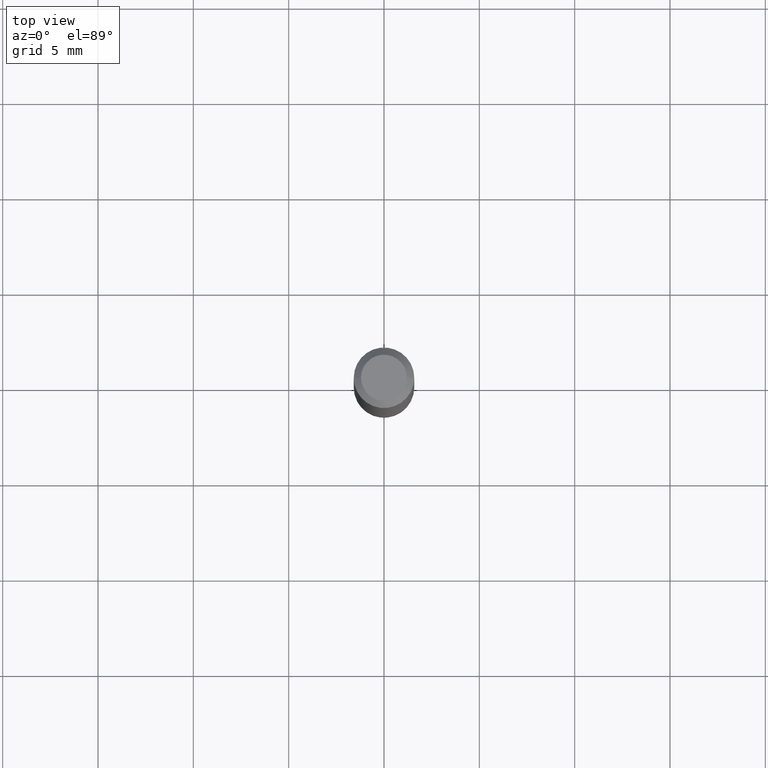
[diagram: clean part render]
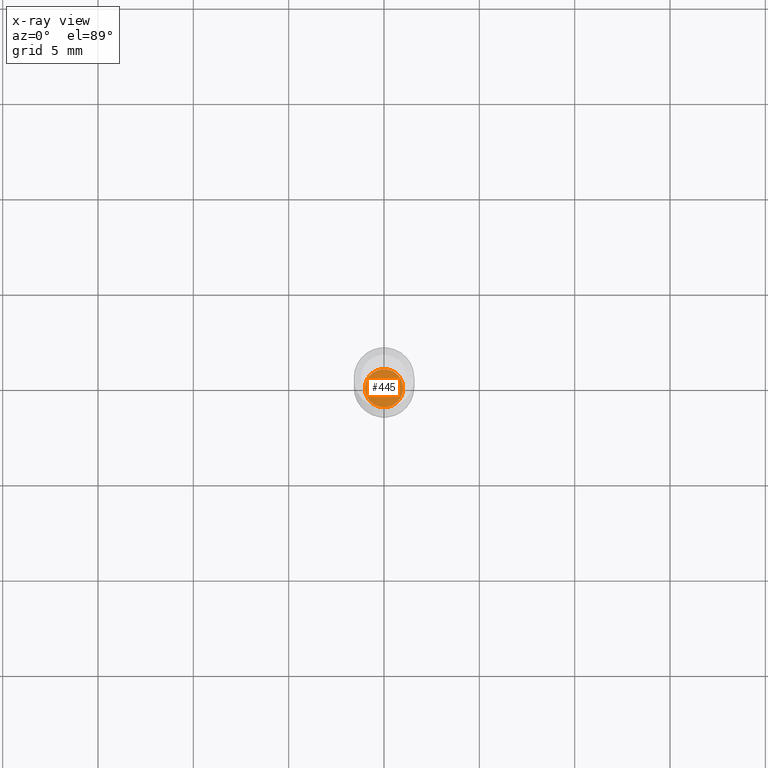
[diagram: x-ray — body ghosted, one internal face saturated and labeled with its STEP entity id]
A machine part, top view, then the same camera in x-ray: the body is ghosted and one INTERNAL B-rep face — a face not visible from any outside direction — is saturated and labeled: STEP entity #445.
In plain terms, the highlighted planar face has unit normal (-0, 0, 1).
Its self-contained STEP definition (entity closure, byte-faithful):
#10 = VERTEX_POINT ( 'NONE', #253 ) ;
#22 = DIRECTION ( 'NONE',  ( 1.000000000000000000, -6.982962677686276177E-15, 0.000000000000000000 ) ) ;
#37 = DIRECTION ( 'NONE',  ( 1.000000000000000000, -6.982962677686265922E-15, 4.876176775795935793E-29 ) ) ;
#42 = CARTESIAN_POINT ( 'NONE',  ( 3.081290695793272291E-29, -4.399266486942364120E-15, -1.260000000000000231 ) ) ;
#62 = CARTESIAN_POINT ( 'NONE',  ( 3.081290695793272291E-29, -4.399266486942364120E-15, -1.260000000000000231 ) ) ;
#92 = EDGE_CURVE ( 'NONE', #220, #10, #174, .T. ) ;
#117 = AXIS2_PLACEMENT_3D ( 'NONE', #42, #388, #37 ) ;
#118 = DIRECTION ( 'NONE',  ( 1.000000000000000000, -6.982962677686276177E-15, 0.000000000000000000 ) ) ;
#164 = DIRECTION ( 'NONE',  ( -2.445468806185136597E-29, 3.491481338843145583E-15, 1.000000000000000000 ) ) ;
#174 = CIRCLE ( 'NONE', #257, 0.03949999999999997263 ) ;
#203 = EDGE_CURVE ( 'NONE', #10, #220, #211, .T. ) ;
#211 = CIRCLE ( 'NONE', #309, 0.03949999999999997263 ) ;
#220 = VERTEX_POINT ( 'NONE', #233 ) ;
#233 = CARTESIAN_POINT ( 'NONE',  ( 0.03949999999999997263, -4.675093512710971939E-15, -1.260000000000000231 ) ) ;
#253 = CARTESIAN_POINT ( 'NONE',  ( -0.03949999999999997263, -4.115952879143013491E-15, -1.260000000000000231 ) ) ;
#257 = AXIS2_PLACEMENT_3D ( 'NONE', #62, #451, #22 ) ;
#309 = AXIS2_PLACEMENT_3D ( 'NONE', #342, #164, #118 ) ;
#342 = CARTESIAN_POINT ( 'NONE',  ( 3.081290695793272291E-29, -4.399266486942364120E-15, -1.260000000000000231 ) ) ;
#375 = EDGE_LOOP ( 'NONE', ( #410, #494 ) ) ;
#379 = FACE_OUTER_BOUND ( 'NONE', #375, .T. ) ;
#388 = DIRECTION ( 'NONE',  ( -2.438088387897960049E-29, 3.491481338843145188E-15, 1.000000000000000000 ) ) ;
#410 = ORIENTED_EDGE ( 'NONE', *, *, #92, .F. ) ;
#434 = PLANE ( 'NONE',  #117 ) ;
#445 = ADVANCED_FACE ( 'NONE', ( #379 ), #434, .F. ) ;
#451 = DIRECTION ( 'NONE',  ( -2.445468806185136597E-29, 3.491481338843145583E-15, 1.000000000000000000 ) ) ;
#494 = ORIENTED_EDGE ( 'NONE', *, *, #203, .F. ) ;